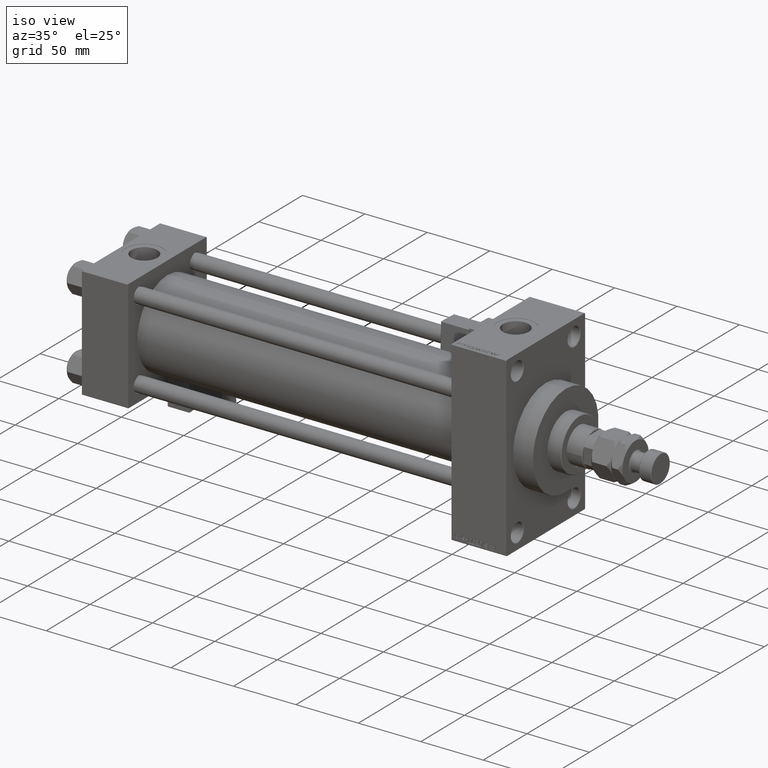
[diagram: clean part render]
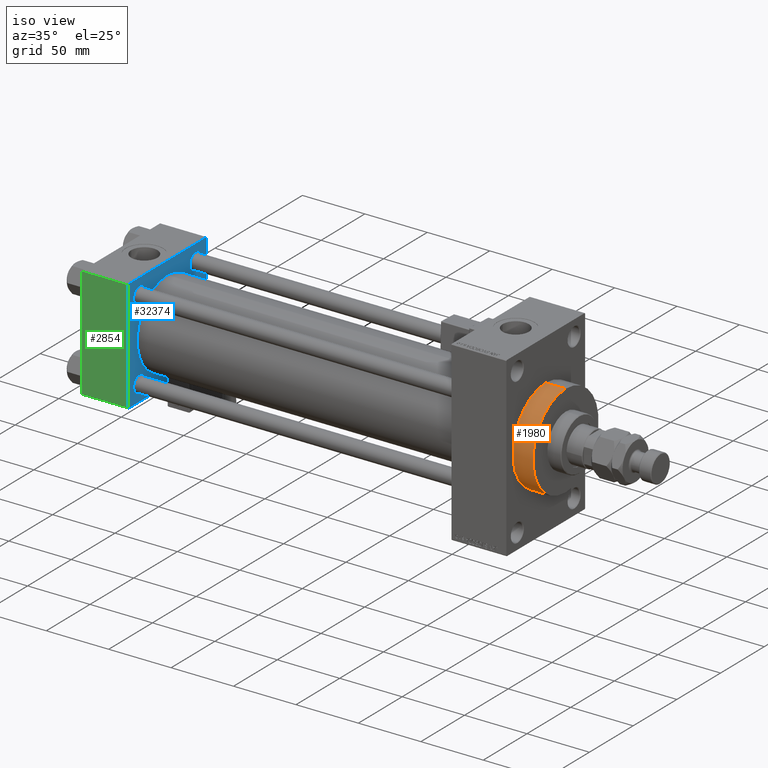
[diagram: same view with three faces highlighted in distinct colors, each labeled with its STEP entity id]
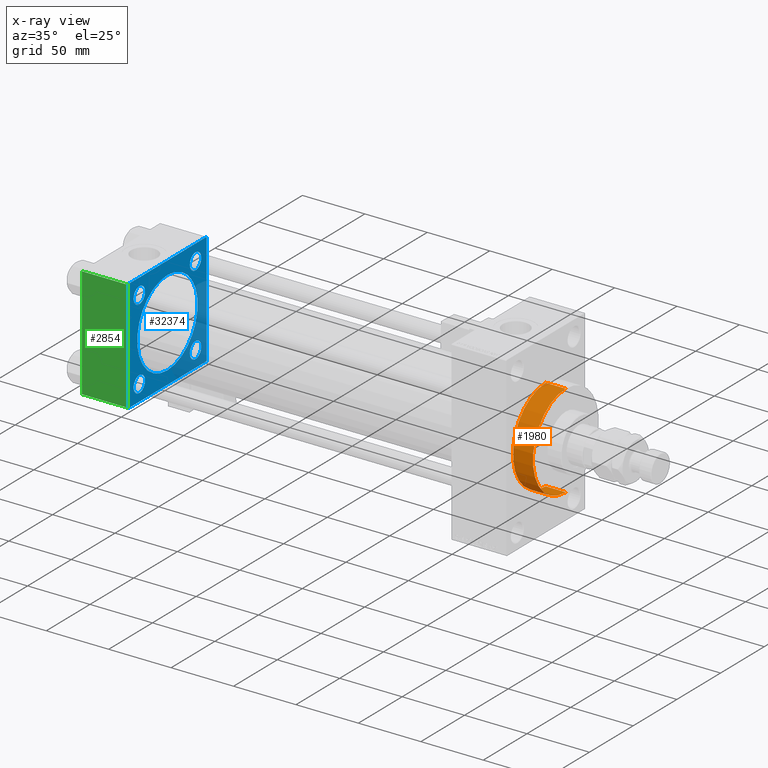
[diagram: x-ray of the same camera — body ghosted, the three highlighted faces saturated]
A machine part, iso view with three faces highlighted in distinct colors.
The next image is the same camera in x-ray (body ghosted, the three faces saturated) — at least one of them is partly hidden behind the body in this view.
Their STEP definitions:

[orange] entity #1980 — the highlighted cylindrical surface (partial cylindrical patch) has radius 37.5 mm, axis along (-1, -0, -0).
#1980 = ADVANCED_FACE ( 'NONE', ( #39278 ), #2196, .T. ) ;
#2196 = CYLINDRICAL_SURFACE ( 'NONE', #40275, 37.50000000000000711 ) ;
#3231 = EDGE_LOOP ( 'NONE', ( #25700, #26528, #9666, #16955 ) ) ;
#3793 = AXIS2_PLACEMENT_3D ( 'NONE', #7273, #48127, #40583 ) ;
#5301 = VERTEX_POINT ( 'NONE', #23263 ) ;
#7273 = CARTESIAN_POINT ( 'NONE',  ( 356.0000000000000000, 0.000000000000000000, 0.000000000000000000 ) ) ;
#8916 = AXIS2_PLACEMENT_3D ( 'NONE', #45716, #49495, #20999 ) ;
#9666 = ORIENTED_EDGE ( 'NONE', *, *, #23473, .T. ) ;
#11560 = LINE ( 'NONE', #27953, #41223 ) ;
#11932 = VERTEX_POINT ( 'NONE', #25751 ) ;
#13897 = CARTESIAN_POINT ( 'NONE',  ( 339.9999999999999432, 0.000000000000000000, 37.50000000000000711 ) ) ;
#16955 = ORIENTED_EDGE ( 'NONE', *, *, #34210, .T. ) ;
#17549 = DIRECTION ( 'NONE',  ( -1.000000000000000000, -0.000000000000000000, -0.000000000000000000 ) ) ;
#17785 = DIRECTION ( 'NONE',  ( 0.000000000000000000, 0.000000000000000000, 1.000000000000000000 ) ) ;
#19984 = VECTOR ( 'NONE', #17549, 1000.000000000000000 ) ;
#20999 = DIRECTION ( 'NONE',  ( 0.000000000000000000, 0.000000000000000000, -1.000000000000000000 ) ) ;
#21311 = VERTEX_POINT ( 'NONE', #32616 ) ;
#23263 = CARTESIAN_POINT ( 'NONE',  ( 356.0000000000000000, 4.592425496802575156E-15, -37.50000000000000711 ) ) ;
#23473 = EDGE_CURVE ( 'NONE', #21311, #38420, #11560, .T. ) ;
#25700 = ORIENTED_EDGE ( 'NONE', *, *, #46340, .F. ) ;
#25751 = CARTESIAN_POINT ( 'NONE',  ( 339.9999999999999432, 4.592425496802575156E-15, -37.50000000000000711 ) ) ;
#26102 = CIRCLE ( 'NONE', #3793, 37.50000000000000711 ) ;
#26528 = ORIENTED_EDGE ( 'NONE', *, *, #49078, .F. ) ;
#27953 = CARTESIAN_POINT ( 'NONE',  ( 356.0000000000000000, 0.000000000000000000, 37.50000000000000711 ) ) ;
#29487 = CIRCLE ( 'NONE', #8916, 37.50000000000000711 ) ;
#32616 = CARTESIAN_POINT ( 'NONE',  ( 356.0000000000000000, 0.000000000000000000, 37.50000000000000711 ) ) ;
#33917 = LINE ( 'NONE', #34985, #19984 ) ;
#34210 = EDGE_CURVE ( 'NONE', #38420, #11932, #29487, .T. ) ;
#34985 = CARTESIAN_POINT ( 'NONE',  ( 356.0000000000000000, 4.592425496802575156E-15, -37.50000000000000711 ) ) ;
#38420 = VERTEX_POINT ( 'NONE', #13897 ) ;
#39278 = FACE_OUTER_BOUND ( 'NONE', #3231, .T. ) ;
#40275 = AXIS2_PLACEMENT_3D ( 'NONE', #46555, #50319, #17785 ) ;
#40583 = DIRECTION ( 'NONE',  ( 0.000000000000000000, 0.000000000000000000, -1.000000000000000000 ) ) ;
#41223 = VECTOR ( 'NONE', #44360, 1000.000000000000000 ) ;
#44360 = DIRECTION ( 'NONE',  ( -1.000000000000000000, -0.000000000000000000, -0.000000000000000000 ) ) ;
#45716 = CARTESIAN_POINT ( 'NONE',  ( 339.9999999999999432, 0.000000000000000000, 0.000000000000000000 ) ) ;
#46340 = EDGE_CURVE ( 'NONE', #5301, #11932, #33917, .T. ) ;
#46555 = CARTESIAN_POINT ( 'NONE',  ( 356.0000000000000000, 0.000000000000000000, 0.000000000000000000 ) ) ;
#48127 = DIRECTION ( 'NONE',  ( 1.000000000000000000, 0.000000000000000000, 0.000000000000000000 ) ) ;
#49078 = EDGE_CURVE ( 'NONE', #21311, #5301, #26102, .T. ) ;
#49495 = DIRECTION ( 'NONE',  ( 1.000000000000000000, 0.000000000000000000, 0.000000000000000000 ) ) ;
#50319 = DIRECTION ( 'NONE',  ( -1.000000000000000000, -0.000000000000000000, -0.000000000000000000 ) ) ;

[blue] entity #32374 — the highlighted planar face has unit normal (-1, 0, 0).
#596 = CARTESIAN_POINT ( 'NONE',  ( 37.00000000000000000, -45.00000000000000711, 44.49999999999997158 ) ) ;
#762 = AXIS2_PLACEMENT_3D ( 'NONE', #6208, #39007, #2434 ) ;
#1735 = VECTOR ( 'NONE', #37828, 1000.000000000000114 ) ;
#1967 = AXIS2_PLACEMENT_3D ( 'NONE', #43944, #7116, #43406 ) ;
#2434 = DIRECTION ( 'NONE',  ( 0.000000000000000000, 0.000000000000000000, 1.000000000000000000 ) ) ;
#2735 = EDGE_CURVE ( 'NONE', #47955, #21978, #21290, .T. ) ;
#2736 = DIRECTION ( 'NONE',  ( -0.000000000000000000, 0.000000000000000000, 1.000000000000000000 ) ) ;
#3026 = FACE_BOUND ( 'NONE', #52329, .T. ) ;
#3158 = CARTESIAN_POINT ( 'NONE',  ( 37.00000000000000000, 44.49999999999998579, -44.99999999999998579 ) ) ;
#3291 = EDGE_CURVE ( 'NONE', #26035, #5789, #26060, .T. ) ;
#3544 = VERTEX_POINT ( 'NONE', #3158 ) ;
#3900 = DIRECTION ( 'NONE',  ( -1.000000000000000000, 0.000000000000000000, -0.000000000000000000 ) ) ;
#4181 = CARTESIAN_POINT ( 'NONE',  ( 37.00000000000000000, -44.49999999999998579, -45.00000000000000000 ) ) ;
#4236 = CIRCLE ( 'NONE', #35100, 6.500000000000061284 ) ;
#4303 = EDGE_LOOP ( 'NONE', ( #50724, #32049 ) ) ;
#4728 = ORIENTED_EDGE ( 'NONE', *, *, #36520, .T. ) ;
#5789 = VERTEX_POINT ( 'NONE', #8930 ) ;
#6104 = CARTESIAN_POINT ( 'NONE',  ( 36.99999999999997868, 1.622946243093158675E-15, -34.50000000000000000 ) ) ;
#6208 = CARTESIAN_POINT ( 'NONE',  ( 37.00000000000000000, 32.14999999999999147, 32.15000000000000568 ) ) ;
#6445 = DIRECTION ( 'NONE',  ( 0.000000000000000000, 0.000000000000000000, -1.000000000000000000 ) ) ;
#6805 = DIRECTION ( 'NONE',  ( -1.000000000000000000, 0.000000000000000000, -0.000000000000000000 ) ) ;
#7116 = DIRECTION ( 'NONE',  ( -1.000000000000000000, 0.000000000000000000, -0.000000000000000000 ) ) ;
#7934 = LINE ( 'NONE', #28866, #9597 ) ;
#8261 = ORIENTED_EDGE ( 'NONE', *, *, #36262, .F. ) ;
#8388 = DIRECTION ( 'NONE',  ( 0.000000000000000000, 0.000000000000000000, 1.000000000000000000 ) ) ;
#8606 = VERTEX_POINT ( 'NONE', #23316 ) ;
#8930 = CARTESIAN_POINT ( 'NONE',  ( 37.00000000000000000, 44.99999999999998579, -44.49999999999995737 ) ) ;
#9497 = ORIENTED_EDGE ( 'NONE', *, *, #24220, .T. ) ;
#9597 = VECTOR ( 'NONE', #17031, 1000.000000000000114 ) ;
#9982 = DIRECTION ( 'NONE',  ( 0.000000000000000000, 7.709882115452476934E-17, -1.000000000000000000 ) ) ;
#10272 = EDGE_CURVE ( 'NONE', #52822, #47556, #25163, .T. ) ;
#10537 = DIRECTION ( 'NONE',  ( -1.000000000000000000, 0.000000000000000000, -0.000000000000000000 ) ) ;
#10599 = DIRECTION ( 'NONE',  ( -1.000000000000000000, 0.000000000000000000, -0.000000000000000000 ) ) ;
#11064 = CARTESIAN_POINT ( 'NONE',  ( 37.00000000000000000, 44.99999999999998579, 44.50000000000001421 ) ) ;
#11537 = EDGE_CURVE ( 'NONE', #37806, #12224, #41511, .T. ) ;
#11887 = CARTESIAN_POINT ( 'NONE',  ( 37.00000000000000000, 44.99999999999998579, -44.99999999999998579 ) ) ;
#11947 = DIRECTION ( 'NONE',  ( -1.000000000000000000, 0.000000000000000000, -0.000000000000000000 ) ) ;
#12134 = DIRECTION ( 'NONE',  ( 1.000000000000000000, -0.000000000000000000, 0.000000000000000000 ) ) ;
#12224 = VERTEX_POINT ( 'NONE', #12544 ) ;
#12544 = CARTESIAN_POINT ( 'NONE',  ( 37.00000000000000000, -32.14999999999997726, -25.64999999999994884 ) ) ;
#13119 = CIRCLE ( 'NONE', #1967, 6.500000000000061284 ) ;
#13310 = ORIENTED_EDGE ( 'NONE', *, *, #21856, .T. ) ;
#13542 = AXIS2_PLACEMENT_3D ( 'NONE', #14618, #10599, #26988 ) ;
#13728 = CARTESIAN_POINT ( 'NONE',  ( 37.00000000000000000, -45.00000000000000711, 45.00000000000000000 ) ) ;
#14610 = VERTEX_POINT ( 'NONE', #38774 ) ;
#14618 = CARTESIAN_POINT ( 'NONE',  ( 37.00000000000000000, 32.14999999999999147, -32.15000000000000568 ) ) ;
#14828 = FACE_BOUND ( 'NONE', #33126, .T. ) ;
#15125 = VERTEX_POINT ( 'NONE', #47855 ) ;
#15625 = FACE_BOUND ( 'NONE', #4303, .T. ) ;
#15929 = DIRECTION ( 'NONE',  ( 1.000000000000000000, -0.000000000000000000, 0.000000000000000000 ) ) ;
#16084 = VERTEX_POINT ( 'NONE', #16894 ) ;
#16129 = CIRCLE ( 'NONE', #13542, 6.500000000000061284 ) ;
#16778 = ORIENTED_EDGE ( 'NONE', *, *, #2735, .T. ) ;
#16894 = CARTESIAN_POINT ( 'NONE',  ( 37.00000000000000000, 44.49999999999998579, 45.00000000000001421 ) ) ;
#17031 = DIRECTION ( 'NONE',  ( -0.000000000000000000, 0.7071067811865474617, 0.7071067811865474617 ) ) ;
#17407 = CARTESIAN_POINT ( 'NONE',  ( 37.00000000000000000, 32.14999999999999147, -25.64999999999994529 ) ) ;
#18182 = EDGE_LOOP ( 'NONE', ( #9497, #39210 ) ) ;
#18355 = AXIS2_PLACEMENT_3D ( 'NONE', #39666, #11947, #27837 ) ;
#18663 = DIRECTION ( 'NONE',  ( -1.000000000000000000, 0.000000000000000000, -0.000000000000000000 ) ) ;
#18706 = EDGE_CURVE ( 'NONE', #33684, #8606, #16129, .T. ) ;
#19063 = ORIENTED_EDGE ( 'NONE', *, *, #3291, .F. ) ;
#19181 = DIRECTION ( 'NONE',  ( 0.000000000000000000, 0.000000000000000000, 1.000000000000000000 ) ) ;
#19853 = ORIENTED_EDGE ( 'NONE', *, *, #45286, .T. ) ;
#20990 = CARTESIAN_POINT ( 'NONE',  ( 37.00000000000000000, -44.49999999999995737, 45.00000000000000000 ) ) ;
#21201 = ORIENTED_EDGE ( 'NONE', *, *, #30179, .T. ) ;
#21290 = LINE ( 'NONE', #596, #47160 ) ;
#21645 = EDGE_CURVE ( 'NONE', #26604, #15125, #29115, .T. ) ;
#21856 = EDGE_CURVE ( 'NONE', #47556, #52822, #23968, .T. ) ;
#21978 = VERTEX_POINT ( 'NONE', #40340 ) ;
#22249 = LINE ( 'NONE', #26005, #1735 ) ;
#22505 = CARTESIAN_POINT ( 'NONE',  ( 37.00000000000000000, 44.99999999999998579, 45.00000000000001421 ) ) ;
#22892 = FACE_OUTER_BOUND ( 'NONE', #43717, .T. ) ;
#23316 = CARTESIAN_POINT ( 'NONE',  ( 37.00000000000000000, 32.14999999999999147, -38.65000000000006963 ) ) ;
#23384 = CIRCLE ( 'NONE', #43101, 6.500000000000061284 ) ;
#23686 = CARTESIAN_POINT ( 'NONE',  ( 37.00000000000000000, 32.14999999999999147, 25.64999999999994529 ) ) ;
#23692 = EDGE_CURVE ( 'NONE', #26035, #16084, #22249, .T. ) ;
#23730 = CARTESIAN_POINT ( 'NONE',  ( 36.99999999999997868, -2.602085213965210642E-15, 0.000000000000000000 ) ) ;
#23968 = CIRCLE ( 'NONE', #762, 6.500000000000061284 ) ;
#24220 = EDGE_CURVE ( 'NONE', #8606, #33684, #4236, .T. ) ;
#24250 = ORIENTED_EDGE ( 'NONE', *, *, #11537, .T. ) ;
#24967 = VERTEX_POINT ( 'NONE', #45864 ) ;
#25121 = LINE ( 'NONE', #4181, #52332 ) ;
#25163 = CIRCLE ( 'NONE', #31132, 6.500000000000061284 ) ;
#25521 = EDGE_CURVE ( 'NONE', #24967, #14610, #25121, .T. ) ;
#26005 = CARTESIAN_POINT ( 'NONE',  ( 37.00000000000000000, 44.49999999999998579, 45.00000000000001421 ) ) ;
#26035 = VERTEX_POINT ( 'NONE', #11064 ) ;
#26060 = LINE ( 'NONE', #43271, #45507 ) ;
#26604 = VERTEX_POINT ( 'NONE', #6104 ) ;
#26971 = AXIS2_PLACEMENT_3D ( 'NONE', #34585, #31075, #48043 ) ;
#26988 = DIRECTION ( 'NONE',  ( 0.000000000000000000, 0.000000000000000000, 1.000000000000000000 ) ) ;
#27837 = DIRECTION ( 'NONE',  ( 0.000000000000000000, 0.000000000000000000, 1.000000000000000000 ) ) ;
#28078 = CARTESIAN_POINT ( 'NONE',  ( 37.00000000000000000, 32.14999999999999147, -32.15000000000000568 ) ) ;
#28547 = AXIS2_PLACEMENT_3D ( 'NONE', #48442, #10537, #2736 ) ;
#28866 = CARTESIAN_POINT ( 'NONE',  ( 37.00000000000000000, 44.99999999999998579, -44.49999999999998579 ) ) ;
#28936 = ORIENTED_EDGE ( 'NONE', *, *, #10272, .T. ) ;
#29115 = CIRCLE ( 'NONE', #32528, 34.50000000000000000 ) ;
#29879 = VERTEX_POINT ( 'NONE', #51240 ) ;
#30179 = EDGE_CURVE ( 'NONE', #3544, #5789, #7934, .T. ) ;
#31075 = DIRECTION ( 'NONE',  ( -1.000000000000000000, 0.000000000000000000, -0.000000000000000000 ) ) ;
#31132 = AXIS2_PLACEMENT_3D ( 'NONE', #39325, #6805, #19181 ) ;
#31146 = VECTOR ( 'NONE', #43740, 1000.000000000000000 ) ;
#31190 = CIRCLE ( 'NONE', #45784, 34.50000000000000000 ) ;
#31265 = VECTOR ( 'NONE', #35271, 1000.000000000000000 ) ;
#32017 = PLANE ( 'NONE',  #28547 ) ;
#32049 = ORIENTED_EDGE ( 'NONE', *, *, #21645, .F. ) ;
#32374 = ADVANCED_FACE ( 'NONE', ( #52474, #39842, #14828, #3026, #15625, #22892 ), #32017, .F. ) ;
#32528 = AXIS2_PLACEMENT_3D ( 'NONE', #23730, #15929, #8388 ) ;
#32850 = EDGE_CURVE ( 'NONE', #16084, #47955, #50730, .T. ) ;
#32894 = VECTOR ( 'NONE', #9982, 1000.000000000000000 ) ;
#33112 = CARTESIAN_POINT ( 'NONE',  ( 37.00000000000000000, -32.14999999999997726, -38.65000000000007674 ) ) ;
#33126 = EDGE_LOOP ( 'NONE', ( #49405, #46327 ) ) ;
#33432 = CARTESIAN_POINT ( 'NONE',  ( 37.00000000000000000, 32.14999999999999147, 38.65000000000006963 ) ) ;
#33684 = VERTEX_POINT ( 'NONE', #17407 ) ;
#34573 = EDGE_LOOP ( 'NONE', ( #24250, #19853 ) ) ;
#34585 = CARTESIAN_POINT ( 'NONE',  ( 37.00000000000000000, -32.14999999999997726, 32.15000000000001279 ) ) ;
#35100 = AXIS2_PLACEMENT_3D ( 'NONE', #28078, #3900, #48261 ) ;
#35271 = DIRECTION ( 'NONE',  ( 0.000000000000000000, -1.000000000000000000, -1.541976423090495633E-16 ) ) ;
#35325 = ORIENTED_EDGE ( 'NONE', *, *, #25521, .T. ) ;
#35551 = LINE ( 'NONE', #11887, #31265 ) ;
#35701 = CARTESIAN_POINT ( 'NONE',  ( 37.00000000000000000, -32.14999999999997726, 38.65000000000007674 ) ) ;
#36262 = EDGE_CURVE ( 'NONE', #3544, #14610, #35551, .T. ) ;
#36520 = EDGE_CURVE ( 'NONE', #21978, #24967, #50839, .T. ) ;
#36589 = CARTESIAN_POINT ( 'NONE',  ( 36.99999999999997868, -2.602085213965210642E-15, 0.000000000000000000 ) ) ;
#37806 = VERTEX_POINT ( 'NONE', #33112 ) ;
#37828 = DIRECTION ( 'NONE',  ( 0.000000000000000000, -0.7071067811865474617, 0.7071067811865474617 ) ) ;
#38590 = EDGE_CURVE ( 'NONE', #29879, #51872, #40733, .T. ) ;
#38774 = CARTESIAN_POINT ( 'NONE',  ( 37.00000000000000000, -44.49999999999995737, -45.00000000000000000 ) ) ;
#39007 = DIRECTION ( 'NONE',  ( -1.000000000000000000, 0.000000000000000000, -0.000000000000000000 ) ) ;
#39210 = ORIENTED_EDGE ( 'NONE', *, *, #18706, .T. ) ;
#39325 = CARTESIAN_POINT ( 'NONE',  ( 37.00000000000000000, 32.14999999999999147, 32.15000000000000568 ) ) ;
#39666 = CARTESIAN_POINT ( 'NONE',  ( 37.00000000000000000, -32.14999999999997726, -32.15000000000001279 ) ) ;
#39842 = FACE_BOUND ( 'NONE', #18182, .T. ) ;
#39922 = ORIENTED_EDGE ( 'NONE', *, *, #23692, .T. ) ;
#40340 = CARTESIAN_POINT ( 'NONE',  ( 37.00000000000000000, -45.00000000000000711, 44.49999999999997158 ) ) ;
#40733 = CIRCLE ( 'NONE', #26971, 6.500000000000061284 ) ;
#41511 = CIRCLE ( 'NONE', #18355, 6.500000000000061284 ) ;
#41730 = DIRECTION ( 'NONE',  ( -0.000000000000000000, -0.7071067811865425767, -0.7071067811865524577 ) ) ;
#42589 = CARTESIAN_POINT ( 'NONE',  ( 37.00000000000000000, -32.14999999999997726, -32.15000000000001279 ) ) ;
#43101 = AXIS2_PLACEMENT_3D ( 'NONE', #42589, #18663, #46350 ) ;
#43271 = CARTESIAN_POINT ( 'NONE',  ( 37.00000000000000000, 44.99999999999998579, 45.00000000000001421 ) ) ;
#43406 = DIRECTION ( 'NONE',  ( 0.000000000000000000, 0.000000000000000000, 1.000000000000000000 ) ) ;
#43717 = EDGE_LOOP ( 'NONE', ( #8261, #21201, #19063, #39922, #47227, #16778, #4728, #35325 ) ) ;
#43740 = DIRECTION ( 'NONE',  ( 0.000000000000000000, -1.000000000000000000, -1.541976423090495387E-16 ) ) ;
#43944 = CARTESIAN_POINT ( 'NONE',  ( 37.00000000000000000, -32.14999999999997726, 32.15000000000001279 ) ) ;
#45286 = EDGE_CURVE ( 'NONE', #12224, #37806, #23384, .T. ) ;
#45507 = VECTOR ( 'NONE', #6445, 1000.000000000000000 ) ;
#45784 = AXIS2_PLACEMENT_3D ( 'NONE', #36589, #12134, #53008 ) ;
#45864 = CARTESIAN_POINT ( 'NONE',  ( 37.00000000000000000, -45.00000000000000000, -44.49999999999995737 ) ) ;
#46327 = ORIENTED_EDGE ( 'NONE', *, *, #47647, .T. ) ;
#46350 = DIRECTION ( 'NONE',  ( 0.000000000000000000, 0.000000000000000000, 1.000000000000000000 ) ) ;
#47160 = VECTOR ( 'NONE', #41730, 1000.000000000000114 ) ;
#47227 = ORIENTED_EDGE ( 'NONE', *, *, #32850, .T. ) ;
#47556 = VERTEX_POINT ( 'NONE', #33432 ) ;
#47647 = EDGE_CURVE ( 'NONE', #51872, #29879, #13119, .T. ) ;
#47855 = CARTESIAN_POINT ( 'NONE',  ( 36.99999999999997868, -2.602085213965210642E-15, 34.50000000000000000 ) ) ;
#47955 = VERTEX_POINT ( 'NONE', #20990 ) ;
#48043 = DIRECTION ( 'NONE',  ( 0.000000000000000000, 0.000000000000000000, 1.000000000000000000 ) ) ;
#48261 = DIRECTION ( 'NONE',  ( 0.000000000000000000, 0.000000000000000000, 1.000000000000000000 ) ) ;
#48442 = CARTESIAN_POINT ( 'NONE',  ( 37.00000000000000000, 0.000000000000000000, 0.000000000000000000 ) ) ;
#48786 = EDGE_CURVE ( 'NONE', #15125, #26604, #31190, .T. ) ;
#49405 = ORIENTED_EDGE ( 'NONE', *, *, #38590, .T. ) ;
#49594 = DIRECTION ( 'NONE',  ( 0.000000000000000000, 0.7071067811865474617, -0.7071067811865474617 ) ) ;
#50724 = ORIENTED_EDGE ( 'NONE', *, *, #48786, .F. ) ;
#50730 = LINE ( 'NONE', #22505, #31146 ) ;
#50839 = LINE ( 'NONE', #13728, #32894 ) ;
#51240 = CARTESIAN_POINT ( 'NONE',  ( 37.00000000000000000, -32.14999999999997726, 25.64999999999994884 ) ) ;
#51872 = VERTEX_POINT ( 'NONE', #35701 ) ;
#52329 = EDGE_LOOP ( 'NONE', ( #28936, #13310 ) ) ;
#52332 = VECTOR ( 'NONE', #49594, 1000.000000000000114 ) ;
#52474 = FACE_BOUND ( 'NONE', #34573, .T. ) ;
#52822 = VERTEX_POINT ( 'NONE', #23686 ) ;
#53008 = DIRECTION ( 'NONE',  ( 0.000000000000000000, 0.000000000000000000, 1.000000000000000000 ) ) ;

[green] entity #2854 — the highlighted planar face has unit normal (0, 1, 0).
#834 = DIRECTION ( 'NONE',  ( 0.000000000000000000, 7.709882115452476934E-17, -1.000000000000000000 ) ) ;
#1134 = CARTESIAN_POINT ( 'NONE',  ( 37.00000000000000000, -45.00000000000000711, 45.00000000000000000 ) ) ;
#1935 = DIRECTION ( 'NONE',  ( 0.000000000000000000, -7.709882115452478166E-17, 1.000000000000000000 ) ) ;
#2422 = LINE ( 'NONE', #18820, #15552 ) ;
#2854 = ADVANCED_FACE ( 'NONE', ( #25851 ), #8676, .F. ) ;
#5967 = DIRECTION ( 'NONE',  ( -0.000000000000000000, 1.000000000000000000, 7.709882115452478166E-17 ) ) ;
#7368 = LINE ( 'NONE', #52791, #26631 ) ;
#8676 = PLANE ( 'NONE',  #19709 ) ;
#8800 = ORIENTED_EDGE ( 'NONE', *, *, #28466, .T. ) ;
#9982 = DIRECTION ( 'NONE',  ( 0.000000000000000000, 7.709882115452476934E-17, -1.000000000000000000 ) ) ;
#12925 = VERTEX_POINT ( 'NONE', #46267 ) ;
#13713 = DIRECTION ( 'NONE',  ( -1.000000000000000000, 0.000000000000000000, 0.000000000000000000 ) ) ;
#13728 = CARTESIAN_POINT ( 'NONE',  ( 37.00000000000000000, -45.00000000000000711, 45.00000000000000000 ) ) ;
#14246 = CARTESIAN_POINT ( 'NONE',  ( 0.000000000000000000, -45.00000000000000711, 44.49999999999997158 ) ) ;
#15552 = VECTOR ( 'NONE', #13713, 1000.000000000000000 ) ;
#15947 = DIRECTION ( 'NONE',  ( 1.000000000000000000, 0.000000000000000000, 0.000000000000000000 ) ) ;
#17072 = VECTOR ( 'NONE', #834, 1000.000000000000000 ) ;
#18820 = CARTESIAN_POINT ( 'NONE',  ( 37.00000000000000000, -45.00000000000000711, 44.49999999999997158 ) ) ;
#19588 = VERTEX_POINT ( 'NONE', #14246 ) ;
#19709 = AXIS2_PLACEMENT_3D ( 'NONE', #1134, #5967, #1935 ) ;
#20530 = EDGE_LOOP ( 'NONE', ( #49768, #35226, #36007, #8800 ) ) ;
#21826 = EDGE_CURVE ( 'NONE', #19588, #12925, #46261, .T. ) ;
#21978 = VERTEX_POINT ( 'NONE', #40340 ) ;
#22071 = CARTESIAN_POINT ( 'NONE',  ( 0.000000000000000000, -45.00000000000000711, 45.00000000000000000 ) ) ;
#24967 = VERTEX_POINT ( 'NONE', #45864 ) ;
#25851 = FACE_OUTER_BOUND ( 'NONE', #20530, .T. ) ;
#26631 = VECTOR ( 'NONE', #15947, 1000.000000000000000 ) ;
#27852 = EDGE_CURVE ( 'NONE', #12925, #24967, #7368, .T. ) ;
#28466 = EDGE_CURVE ( 'NONE', #21978, #19588, #2422, .T. ) ;
#32894 = VECTOR ( 'NONE', #9982, 1000.000000000000000 ) ;
#35226 = ORIENTED_EDGE ( 'NONE', *, *, #27852, .T. ) ;
#36007 = ORIENTED_EDGE ( 'NONE', *, *, #36520, .F. ) ;
#36520 = EDGE_CURVE ( 'NONE', #21978, #24967, #50839, .T. ) ;
#40340 = CARTESIAN_POINT ( 'NONE',  ( 37.00000000000000000, -45.00000000000000711, 44.49999999999997158 ) ) ;
#45864 = CARTESIAN_POINT ( 'NONE',  ( 37.00000000000000000, -45.00000000000000000, -44.49999999999995737 ) ) ;
#46261 = LINE ( 'NONE', #22071, #17072 ) ;
#46267 = CARTESIAN_POINT ( 'NONE',  ( 0.000000000000000000, -45.00000000000000000, -44.49999999999995737 ) ) ;
#49768 = ORIENTED_EDGE ( 'NONE', *, *, #21826, .T. ) ;
#50839 = LINE ( 'NONE', #13728, #32894 ) ;
#52791 = CARTESIAN_POINT ( 'NONE',  ( 37.00000000000000000, -45.00000000000000000, -44.49999999999998579 ) ) ;